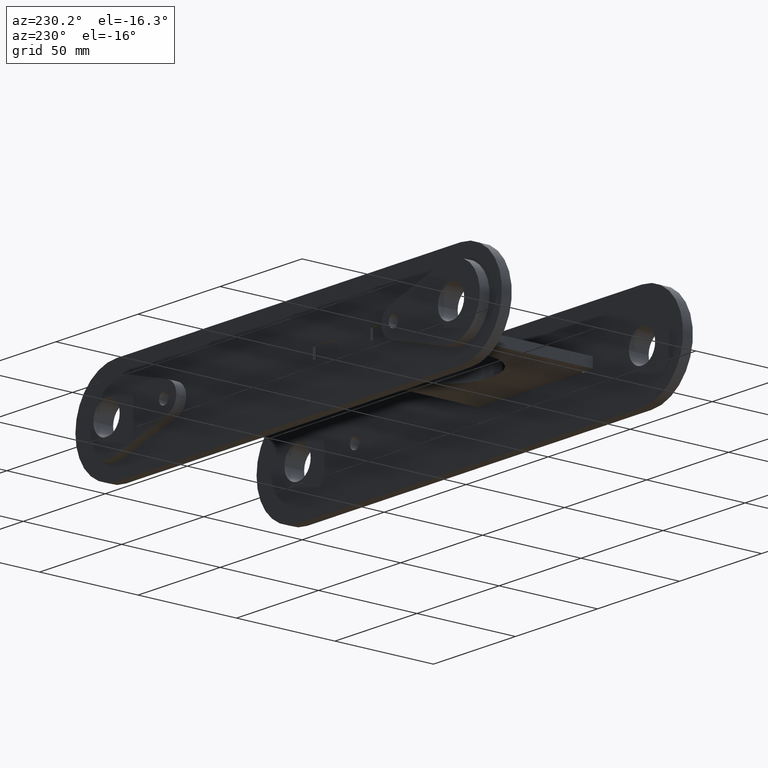
[diagram: clean part render]
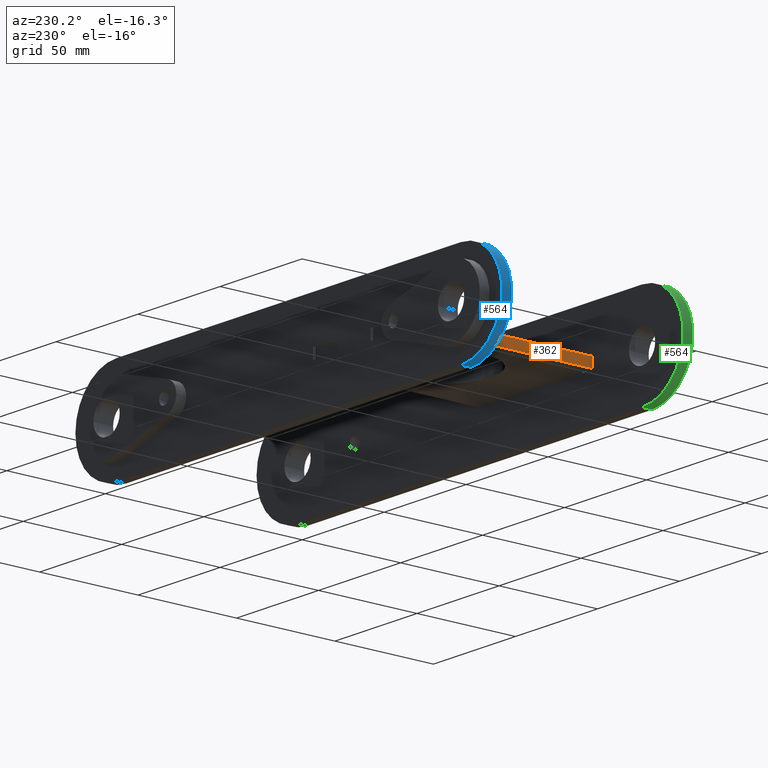
[diagram: same view with three faces highlighted in distinct colors, each labeled with its STEP entity id]
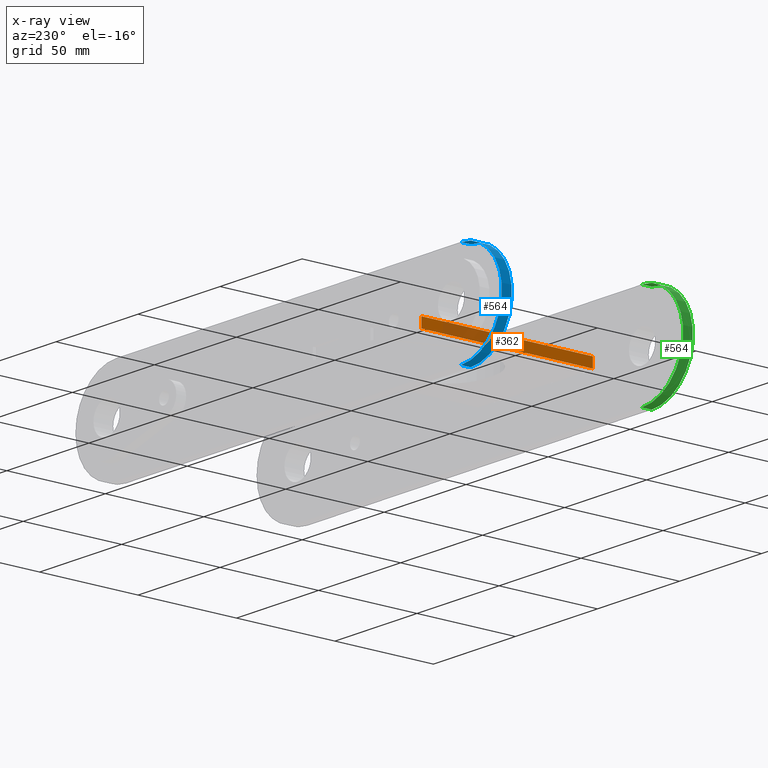
[diagram: x-ray of the same camera — body ghosted, the three highlighted faces saturated]
A machine part, auxiliary view with three faces highlighted in distinct colors.
The next image is the same camera in x-ray (body ghosted, the three faces saturated) — at least one of them is partly hidden behind the body in this view.
Their STEP definitions:

[orange] entity #362 — the highlighted planar face has unit normal (-1, -0, 0).
#49 = CARTESIAN_POINT ( 'NONE',  ( -35.00000000000000000, 43.50000000000000000, -2.500000000000000000 ) ) ;
#225 = DIRECTION ( 'NONE',  ( 0.000000000000000000, 0.000000000000000000, 1.000000000000000000 ) ) ;
#239 = FACE_OUTER_BOUND ( 'NONE', #1482, .T. ) ;
#296 = CARTESIAN_POINT ( 'NONE',  ( -34.99999999999999289, -43.50000000000000000, -2.500000000000000000 ) ) ;
#362 = ADVANCED_FACE ( 'NONE', ( #239 ), #1091, .T. ) ;
#390 = AXIS2_PLACEMENT_3D ( 'NONE', #49, #1763, #2392 ) ;
#425 = LINE ( 'NONE', #1235, #708 ) ;
#636 = EDGE_CURVE ( 'NONE', #1620, #1395, #425, .T. ) ;
#663 = LINE ( 'NONE', #904, #1520 ) ;
#708 = VECTOR ( 'NONE', #225, 1000.000000000000000 ) ;
#709 = VECTOR ( 'NONE', #737, 1000.000000000000000 ) ;
#737 = DIRECTION ( 'NONE',  ( 0.000000000000000000, 0.000000000000000000, 1.000000000000000000 ) ) ;
#904 = CARTESIAN_POINT ( 'NONE',  ( -35.00000000000000000, 43.50000000000000000, -2.500000000000000000 ) ) ;
#958 = CARTESIAN_POINT ( 'NONE',  ( -35.00000000000000000, 43.50000000000000000, 2.500000000000000000 ) ) ;
#972 = VECTOR ( 'NONE', #1204, 1000.000000000000000 ) ;
#1091 = PLANE ( 'NONE',  #390 ) ;
#1123 = CARTESIAN_POINT ( 'NONE',  ( -35.00000000000000000, 43.50000000000000000, 2.500000000000000000 ) ) ;
#1204 = DIRECTION ( 'NONE',  ( 1.595148023886719315E-16, -1.000000000000000000, 0.000000000000000000 ) ) ;
#1235 = CARTESIAN_POINT ( 'NONE',  ( -35.00000000000000000, 43.50000000000000000, -2.500000000000000000 ) ) ;
#1250 = EDGE_CURVE ( 'NONE', #1270, #1829, #2670, .T. ) ;
#1270 = VERTEX_POINT ( 'NONE', #1805 ) ;
#1354 = CARTESIAN_POINT ( 'NONE',  ( -35.00000000000000000, 43.50000000000000000, -2.500000000000000000 ) ) ;
#1395 = VERTEX_POINT ( 'NONE', #1123 ) ;
#1468 = ORIENTED_EDGE ( 'NONE', *, *, #636, .F. ) ;
#1482 = EDGE_LOOP ( 'NONE', ( #2299, #1468, #2511, #2612 ) ) ;
#1520 = VECTOR ( 'NONE', #1943, 1000.000000000000000 ) ;
#1620 = VERTEX_POINT ( 'NONE', #1354 ) ;
#1711 = EDGE_CURVE ( 'NONE', #1395, #1829, #1800, .T. ) ;
#1763 = DIRECTION ( 'NONE',  ( -1.000000000000000000, -1.595148023886719315E-16, 0.000000000000000000 ) ) ;
#1800 = LINE ( 'NONE', #958, #972 ) ;
#1805 = CARTESIAN_POINT ( 'NONE',  ( -34.99999999999999289, -43.50000000000000000, -2.500000000000000000 ) ) ;
#1829 = VERTEX_POINT ( 'NONE', #2709 ) ;
#1943 = DIRECTION ( 'NONE',  ( 1.595148023886719315E-16, -1.000000000000000000, 0.000000000000000000 ) ) ;
#2158 = EDGE_CURVE ( 'NONE', #1620, #1270, #663, .T. ) ;
#2299 = ORIENTED_EDGE ( 'NONE', *, *, #1711, .F. ) ;
#2392 = DIRECTION ( 'NONE',  ( 1.595148023886719315E-16, -1.000000000000000000, 0.000000000000000000 ) ) ;
#2511 = ORIENTED_EDGE ( 'NONE', *, *, #2158, .T. ) ;
#2612 = ORIENTED_EDGE ( 'NONE', *, *, #1250, .T. ) ;
#2670 = LINE ( 'NONE', #296, #709 ) ;
#2709 = CARTESIAN_POINT ( 'NONE',  ( -34.99999999999999289, -43.50000000000000000, 2.500000000000000000 ) ) ;

[blue] entity #564 — the highlighted cylindrical surface (partial cylindrical patch) has radius 25 mm, axis along (0, -1, 0).
#46 = CARTESIAN_POINT ( 'NONE',  ( -104.9999999999999858, 25.00000000000004263, -5.000000000000000000 ) ) ;
#83 = ORIENTED_EDGE ( 'NONE', *, *, #378, .T. ) ;
#212 = DIRECTION ( 'NONE',  ( 1.000000000000000000, 0.000000000000000000, 0.000000000000000000 ) ) ;
#228 = VERTEX_POINT ( 'NONE', #669 ) ;
#257 = DIRECTION ( 'NONE',  ( 1.000000000000000000, 0.000000000000000000, 0.000000000000000000 ) ) ;
#299 = CARTESIAN_POINT ( 'NONE',  ( -104.9999999999999858, 25.00000000000004263, -5.000000000000000000 ) ) ;
#301 = CARTESIAN_POINT ( 'NONE',  ( -104.9999999999999858, -25.00000000000004263, -5.000000000000000000 ) ) ;
#378 = EDGE_CURVE ( 'NONE', #2349, #661, #472, .T. ) ;
#452 = CARTESIAN_POINT ( 'NONE',  ( -104.9999999999999858, 0.000000000000000000, -5.000000000000000000 ) ) ;
#472 = LINE ( 'NONE', #1751, #570 ) ;
#525 = CIRCLE ( 'NONE', #2720, 25.00000000000004974 ) ;
#564 = ADVANCED_FACE ( 'NONE', ( #2117 ), #2344, .T. ) ;
#570 = VECTOR ( 'NONE', #2610, 1000.000000000000000 ) ;
#661 = VERTEX_POINT ( 'NONE', #2752 ) ;
#668 = AXIS2_PLACEMENT_3D ( 'NONE', #452, #702, #257 ) ;
#669 = CARTESIAN_POINT ( 'NONE',  ( -104.9999999999999858, 25.00000000000004263, 0.000000000000000000 ) ) ;
#702 = DIRECTION ( 'NONE',  ( 0.000000000000000000, 0.000000000000000000, 1.000000000000000000 ) ) ;
#791 = EDGE_CURVE ( 'NONE', #2110, #228, #1155, .T. ) ;
#828 = ORIENTED_EDGE ( 'NONE', *, *, #791, .F. ) ;
#894 = ORIENTED_EDGE ( 'NONE', *, *, #1330, .F. ) ;
#1155 = LINE ( 'NONE', #299, #2221 ) ;
#1321 = DIRECTION ( 'NONE',  ( 1.000000000000000000, 0.000000000000000000, 0.000000000000000000 ) ) ;
#1330 = EDGE_CURVE ( 'NONE', #228, #661, #525, .T. ) ;
#1391 = ORIENTED_EDGE ( 'NONE', *, *, #2535, .T. ) ;
#1460 = EDGE_LOOP ( 'NONE', ( #894, #828, #1391, #83 ) ) ;
#1603 = DIRECTION ( 'NONE',  ( 0.000000000000000000, 0.000000000000000000, 1.000000000000000000 ) ) ;
#1751 = CARTESIAN_POINT ( 'NONE',  ( -104.9999999999999858, -25.00000000000004263, -5.000000000000000000 ) ) ;
#1754 = CARTESIAN_POINT ( 'NONE',  ( -104.9999999999999858, 0.000000000000000000, 0.000000000000000000 ) ) ;
#1910 = AXIS2_PLACEMENT_3D ( 'NONE', #2643, #2555, #212 ) ;
#2110 = VERTEX_POINT ( 'NONE', #46 ) ;
#2117 = FACE_OUTER_BOUND ( 'NONE', #1460, .T. ) ;
#2221 = VECTOR ( 'NONE', #2454, 1000.000000000000000 ) ;
#2344 = CYLINDRICAL_SURFACE ( 'NONE', #1910, 25.00000000000004974 ) ;
#2349 = VERTEX_POINT ( 'NONE', #301 ) ;
#2454 = DIRECTION ( 'NONE',  ( 0.000000000000000000, 0.000000000000000000, 1.000000000000000000 ) ) ;
#2457 = CIRCLE ( 'NONE', #668, 25.00000000000004974 ) ;
#2535 = EDGE_CURVE ( 'NONE', #2110, #2349, #2457, .T. ) ;
#2555 = DIRECTION ( 'NONE',  ( 0.000000000000000000, 0.000000000000000000, 1.000000000000000000 ) ) ;
#2610 = DIRECTION ( 'NONE',  ( 0.000000000000000000, 0.000000000000000000, 1.000000000000000000 ) ) ;
#2643 = CARTESIAN_POINT ( 'NONE',  ( -104.9999999999999858, 0.000000000000000000, -5.000000000000000000 ) ) ;
#2720 = AXIS2_PLACEMENT_3D ( 'NONE', #1754, #1603, #1321 ) ;
#2752 = CARTESIAN_POINT ( 'NONE',  ( -104.9999999999999858, -25.00000000000004263, 0.000000000000000000 ) ) ;

[green] entity #564 — the highlighted cylindrical surface (partial cylindrical patch) has radius 25 mm, axis along (-0, -1, 0).
#46 = CARTESIAN_POINT ( 'NONE',  ( -104.9999999999999858, 25.00000000000004263, -5.000000000000000000 ) ) ;
#83 = ORIENTED_EDGE ( 'NONE', *, *, #378, .T. ) ;
#212 = DIRECTION ( 'NONE',  ( 1.000000000000000000, 0.000000000000000000, 0.000000000000000000 ) ) ;
#228 = VERTEX_POINT ( 'NONE', #669 ) ;
#257 = DIRECTION ( 'NONE',  ( 1.000000000000000000, 0.000000000000000000, 0.000000000000000000 ) ) ;
#299 = CARTESIAN_POINT ( 'NONE',  ( -104.9999999999999858, 25.00000000000004263, -5.000000000000000000 ) ) ;
#301 = CARTESIAN_POINT ( 'NONE',  ( -104.9999999999999858, -25.00000000000004263, -5.000000000000000000 ) ) ;
#378 = EDGE_CURVE ( 'NONE', #2349, #661, #472, .T. ) ;
#452 = CARTESIAN_POINT ( 'NONE',  ( -104.9999999999999858, 0.000000000000000000, -5.000000000000000000 ) ) ;
#472 = LINE ( 'NONE', #1751, #570 ) ;
#525 = CIRCLE ( 'NONE', #2720, 25.00000000000004974 ) ;
#564 = ADVANCED_FACE ( 'NONE', ( #2117 ), #2344, .T. ) ;
#570 = VECTOR ( 'NONE', #2610, 1000.000000000000000 ) ;
#661 = VERTEX_POINT ( 'NONE', #2752 ) ;
#668 = AXIS2_PLACEMENT_3D ( 'NONE', #452, #702, #257 ) ;
#669 = CARTESIAN_POINT ( 'NONE',  ( -104.9999999999999858, 25.00000000000004263, 0.000000000000000000 ) ) ;
#702 = DIRECTION ( 'NONE',  ( 0.000000000000000000, 0.000000000000000000, 1.000000000000000000 ) ) ;
#791 = EDGE_CURVE ( 'NONE', #2110, #228, #1155, .T. ) ;
#828 = ORIENTED_EDGE ( 'NONE', *, *, #791, .F. ) ;
#894 = ORIENTED_EDGE ( 'NONE', *, *, #1330, .F. ) ;
#1155 = LINE ( 'NONE', #299, #2221 ) ;
#1321 = DIRECTION ( 'NONE',  ( 1.000000000000000000, 0.000000000000000000, 0.000000000000000000 ) ) ;
#1330 = EDGE_CURVE ( 'NONE', #228, #661, #525, .T. ) ;
#1391 = ORIENTED_EDGE ( 'NONE', *, *, #2535, .T. ) ;
#1460 = EDGE_LOOP ( 'NONE', ( #894, #828, #1391, #83 ) ) ;
#1603 = DIRECTION ( 'NONE',  ( 0.000000000000000000, 0.000000000000000000, 1.000000000000000000 ) ) ;
#1751 = CARTESIAN_POINT ( 'NONE',  ( -104.9999999999999858, -25.00000000000004263, -5.000000000000000000 ) ) ;
#1754 = CARTESIAN_POINT ( 'NONE',  ( -104.9999999999999858, 0.000000000000000000, 0.000000000000000000 ) ) ;
#1910 = AXIS2_PLACEMENT_3D ( 'NONE', #2643, #2555, #212 ) ;
#2110 = VERTEX_POINT ( 'NONE', #46 ) ;
#2117 = FACE_OUTER_BOUND ( 'NONE', #1460, .T. ) ;
#2221 = VECTOR ( 'NONE', #2454, 1000.000000000000000 ) ;
#2344 = CYLINDRICAL_SURFACE ( 'NONE', #1910, 25.00000000000004974 ) ;
#2349 = VERTEX_POINT ( 'NONE', #301 ) ;
#2454 = DIRECTION ( 'NONE',  ( 0.000000000000000000, 0.000000000000000000, 1.000000000000000000 ) ) ;
#2457 = CIRCLE ( 'NONE', #668, 25.00000000000004974 ) ;
#2535 = EDGE_CURVE ( 'NONE', #2110, #2349, #2457, .T. ) ;
#2555 = DIRECTION ( 'NONE',  ( 0.000000000000000000, 0.000000000000000000, 1.000000000000000000 ) ) ;
#2610 = DIRECTION ( 'NONE',  ( 0.000000000000000000, 0.000000000000000000, 1.000000000000000000 ) ) ;
#2643 = CARTESIAN_POINT ( 'NONE',  ( -104.9999999999999858, 0.000000000000000000, -5.000000000000000000 ) ) ;
#2720 = AXIS2_PLACEMENT_3D ( 'NONE', #1754, #1603, #1321 ) ;
#2752 = CARTESIAN_POINT ( 'NONE',  ( -104.9999999999999858, -25.00000000000004263, 0.000000000000000000 ) ) ;